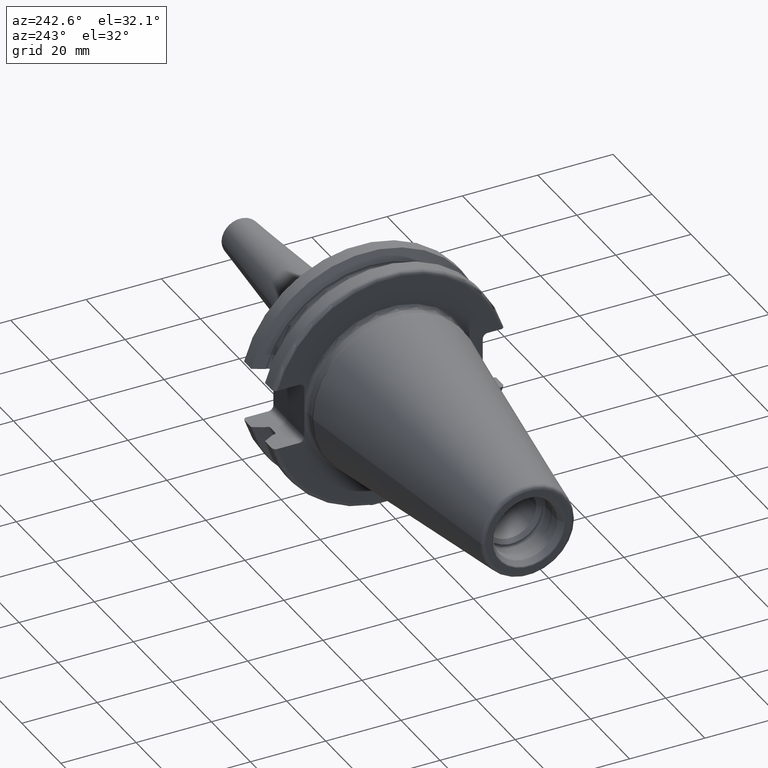
[diagram: clean part render]
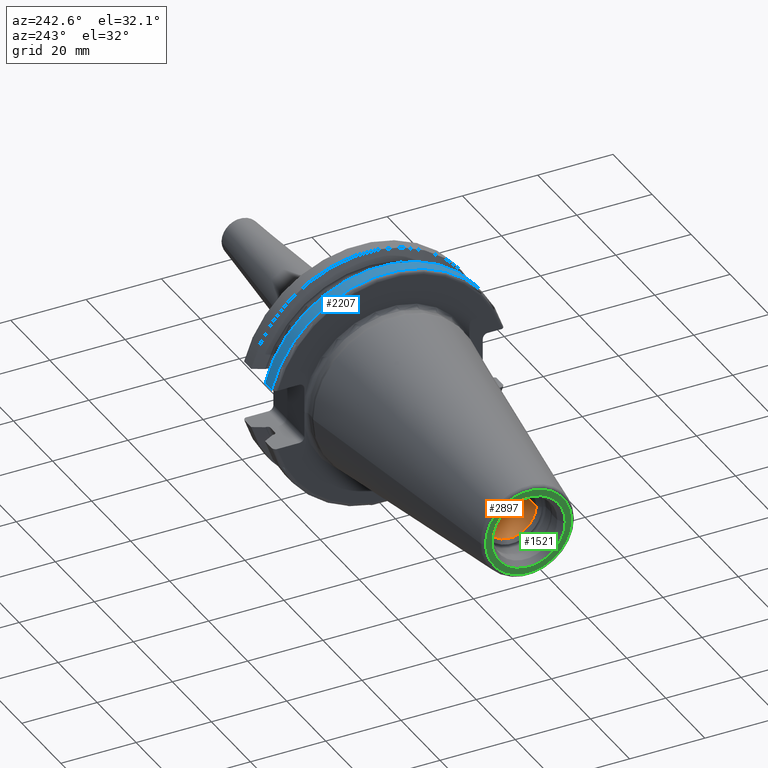
[diagram: same view with three faces highlighted in distinct colors, each labeled with its STEP entity id]
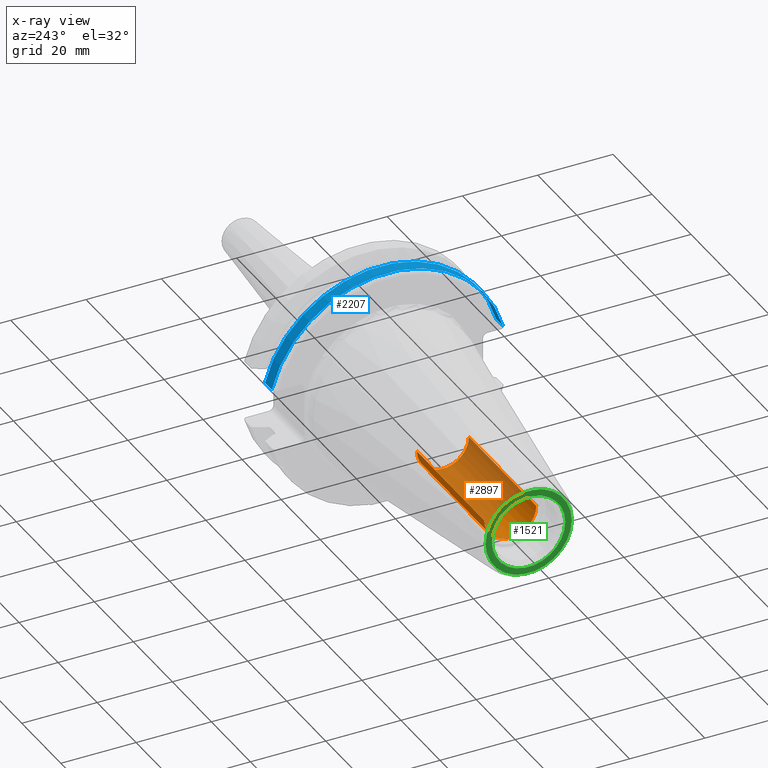
[diagram: x-ray of the same camera — body ghosted, the three highlighted faces saturated]
A machine part, auxiliary view with three faces highlighted in distinct colors.
The next image is the same camera in x-ray (body ghosted, the three faces saturated) — at least one of them is partly hidden behind the body in this view.
Their STEP definitions:

[orange] entity #2897 — the highlighted cylindrical surface (edge-blend (fillet) strip) has radius 6.92 mm, axis along (1, 0, 0).
#1211=CARTESIAN_POINT('',(-5.88E1,0.E0,0.E0));
#1212=DIRECTION('',(-1.E0,0.E0,0.E0));
#1213=DIRECTION('',(0.E0,1.E0,0.E0));
#1214=AXIS2_PLACEMENT_3D('',#1211,#1212,#1213);
#1220=DIRECTION('',(-1.E0,0.E0,0.E0));
#1221=VECTOR('',#1220,3.455E1);
#1222=CARTESIAN_POINT('',(-2.425E1,6.92E0,0.E0));
#1223=LINE('',#1222,#1221);
#1224=CARTESIAN_POINT('',(-2.425E1,0.E0,0.E0));
#1225=DIRECTION('',(-1.E0,0.E0,0.E0));
#1226=DIRECTION('',(0.E0,1.E0,0.E0));
#1227=AXIS2_PLACEMENT_3D('',#1224,#1225,#1226);
#1229=DIRECTION('',(-1.E0,0.E0,0.E0));
#1230=VECTOR('',#1229,3.455E1);
#1231=CARTESIAN_POINT('',(-2.425E1,-6.92E0,0.E0));
#1232=LINE('',#1231,#1230);
#1265=CARTESIAN_POINT('',(-2.425E1,6.92E0,0.E0));
#1267=VERTEX_POINT('',#1265);
#1268=CARTESIAN_POINT('',(-5.88E1,6.92E0,0.E0));
#1269=VERTEX_POINT('',#1268);
#1288=CARTESIAN_POINT('',(-2.425E1,-6.92E0,0.E0));
#1289=VERTEX_POINT('',#1288);
#1290=CARTESIAN_POINT('',(-5.88E1,-6.92E0,0.E0));
#1291=VERTEX_POINT('',#1290);
#2883=CARTESIAN_POINT('',(-7.065789777418E1,0.E0,0.E0));
#2884=DIRECTION('',(1.E0,0.E0,0.E0));
#2885=DIRECTION('',(0.E0,-1.E0,0.E0));
#2886=AXIS2_PLACEMENT_3D('',#2883,#2884,#2885);
#2887=CYLINDRICAL_SURFACE('',#2886,6.92E0);
#2889=ORIENTED_EDGE('',*,*,#2888,.F.);
#2891=ORIENTED_EDGE('',*,*,#2890,.T.);
#2893=ORIENTED_EDGE('',*,*,#2892,.T.);
#2894=ORIENTED_EDGE('',*,*,#2876,.F.);
#2895=EDGE_LOOP('',(#2889,#2891,#2893,#2894));
#2896=FACE_OUTER_BOUND('',#2895,.F.);
#2897=ADVANCED_FACE('',(#2896),#2887,.F.);
#1215=CIRCLE('',#1214,6.92E0);
#1228=CIRCLE('',#1227,6.92E0);
#2876=EDGE_CURVE('',#1269,#1291,#1215,.T.);
#2888=EDGE_CURVE('',#1267,#1269,#1223,.T.);
#2890=EDGE_CURVE('',#1267,#1289,#1228,.T.);
#2892=EDGE_CURVE('',#1289,#1291,#1232,.T.);

[blue] entity #2207 — the highlighted cylindrical surface (partial cylindrical patch) has radius 31.7625 mm, axis along (1, 0, 0).
#584=DIRECTION('',(1.E0,0.E0,0.E0));
#585=VECTOR('',#584,3.445946479578E0);
#586=CARTESIAN_POINT('',(4.2E0,3.071231684927E1,8.1E0));
#587=LINE('',#586,#585);
#588=CARTESIAN_POINT('',(7.645946479578E0,0.E0,0.E0));
#589=DIRECTION('',(1.E0,0.E0,0.E0));
#590=DIRECTION('',(0.E0,9.669363825036E-1,2.550177095632E-1));
#591=AXIS2_PLACEMENT_3D('',#588,#589,#590);
#593=DIRECTION('',(1.E0,0.E0,0.E0));
#594=VECTOR('',#593,3.445946479578E0);
#595=CARTESIAN_POINT('',(4.2E0,-3.071231684927E1,8.1E0));
#596=LINE('',#595,#594);
#615=CARTESIAN_POINT('',(7.645946479578E0,3.071231684927E1,8.1E0));
#627=CARTESIAN_POINT('',(7.645946479578E0,-3.071231684927E1,8.1E0));
#922=CARTESIAN_POINT('',(4.2E0,0.E0,0.E0));
#923=DIRECTION('',(1.E0,0.E0,0.E0));
#924=DIRECTION('',(0.E0,9.669363825036E-1,2.550177095632E-1));
#925=AXIS2_PLACEMENT_3D('',#922,#923,#924);
#1372=VERTEX_POINT('',#615);
#1373=VERTEX_POINT('',#627);
#1384=CARTESIAN_POINT('',(4.2E0,3.071231684927E1,8.1E0));
#1385=VERTEX_POINT('',#1384);
#1388=CARTESIAN_POINT('',(4.2E0,-3.071231684927E1,8.1E0));
#1389=VERTEX_POINT('',#1388);
#2194=CARTESIAN_POINT('',(-7.2615E1,0.E0,0.E0));
#2195=DIRECTION('',(1.E0,0.E0,0.E0));
#2196=DIRECTION('',(0.E0,-1.E0,0.E0));
#2197=AXIS2_PLACEMENT_3D('',#2194,#2195,#2196);
#2198=CYLINDRICAL_SURFACE('',#2197,3.17625E1);
#2199=ORIENTED_EDGE('',*,*,#1844,.T.);
#2201=ORIENTED_EDGE('',*,*,#2200,.T.);
#2202=ORIENTED_EDGE('',*,*,#1876,.F.);
#2204=ORIENTED_EDGE('',*,*,#2203,.F.);
#2205=EDGE_LOOP('',(#2199,#2201,#2202,#2204));
#2206=FACE_OUTER_BOUND('',#2205,.F.);
#2207=ADVANCED_FACE('',(#2206),#2198,.T.);
#592=CIRCLE('',#591,3.17625E1);
#926=CIRCLE('',#925,3.17625E1);
#1844=EDGE_CURVE('',#1385,#1372,#587,.T.);
#1876=EDGE_CURVE('',#1389,#1373,#596,.T.);
#2200=EDGE_CURVE('',#1372,#1373,#592,.T.);
#2203=EDGE_CURVE('',#1385,#1389,#926,.T.);

[green] entity #1521 — the highlighted planar face has unit normal (1, 0, 0).
#2=CARTESIAN_POINT('',(-6.825E1,0.E0,0.E0));
#3=DIRECTION('',(-1.E0,0.E0,0.E0));
#4=DIRECTION('',(0.E0,1.E0,0.E0));
#5=AXIS2_PLACEMENT_3D('',#2,#3,#4);
#7=CARTESIAN_POINT('',(-6.825E1,0.E0,0.E0));
#8=DIRECTION('',(1.E0,0.E0,0.E0));
#9=DIRECTION('',(0.E0,1.E0,0.E0));
#10=AXIS2_PLACEMENT_3D('',#7,#8,#9);
#12=CARTESIAN_POINT('',(-6.825E1,0.E0,0.E0));
#13=DIRECTION('',(1.E0,0.E0,0.E0));
#14=DIRECTION('',(0.E0,1.E0,0.E0));
#15=AXIS2_PLACEMENT_3D('',#12,#13,#14);
#17=CARTESIAN_POINT('',(-6.825E1,0.E0,0.E0));
#18=DIRECTION('',(1.E0,0.E0,0.E0));
#19=DIRECTION('',(0.E0,-1.E0,0.E0));
#20=AXIS2_PLACEMENT_3D('',#17,#18,#19);
#1247=CARTESIAN_POINT('',(-6.825E1,1.144954820082E1,0.E0));
#1249=VERTEX_POINT('',#1247);
#1251=CARTESIAN_POINT('',(-6.825E1,-1.144954820082E1,0.E0));
#1253=VERTEX_POINT('',#1251);
#1310=CARTESIAN_POINT('',(-6.825E1,9.730940107676E0,0.E0));
#1311=CARTESIAN_POINT('',(-6.825E1,-9.730940107676E0,0.E0));
#1312=VERTEX_POINT('',#1310);
#1313=VERTEX_POINT('',#1311);
#1504=CARTESIAN_POINT('',(-6.825E1,0.E0,0.E0));
#1505=DIRECTION('',(1.E0,0.E0,0.E0));
#1506=DIRECTION('',(0.E0,-1.E0,0.E0));
#1507=AXIS2_PLACEMENT_3D('',#1504,#1505,#1506);
#1508=PLANE('',#1507);
#1510=ORIENTED_EDGE('',*,*,#1509,.F.);
#1512=ORIENTED_EDGE('',*,*,#1511,.T.);
#1513=EDGE_LOOP('',(#1510,#1512));
#1514=FACE_OUTER_BOUND('',#1513,.F.);
#1516=ORIENTED_EDGE('',*,*,#1515,.F.);
#1518=ORIENTED_EDGE('',*,*,#1517,.F.);
#1519=EDGE_LOOP('',(#1516,#1518));
#1520=FACE_BOUND('',#1519,.F.);
#1521=ADVANCED_FACE('',(#1514,#1520),#1508,.F.);
#6=CIRCLE('',#5,1.144954820082E1);
#11=CIRCLE('',#10,1.144954820082E1);
#16=CIRCLE('',#15,9.730940107676E0);
#21=CIRCLE('',#20,9.730940107676E0);
#1509=EDGE_CURVE('',#1249,#1253,#6,.T.);
#1511=EDGE_CURVE('',#1249,#1253,#11,.T.);
#1515=EDGE_CURVE('',#1312,#1313,#16,.T.);
#1517=EDGE_CURVE('',#1313,#1312,#21,.T.);